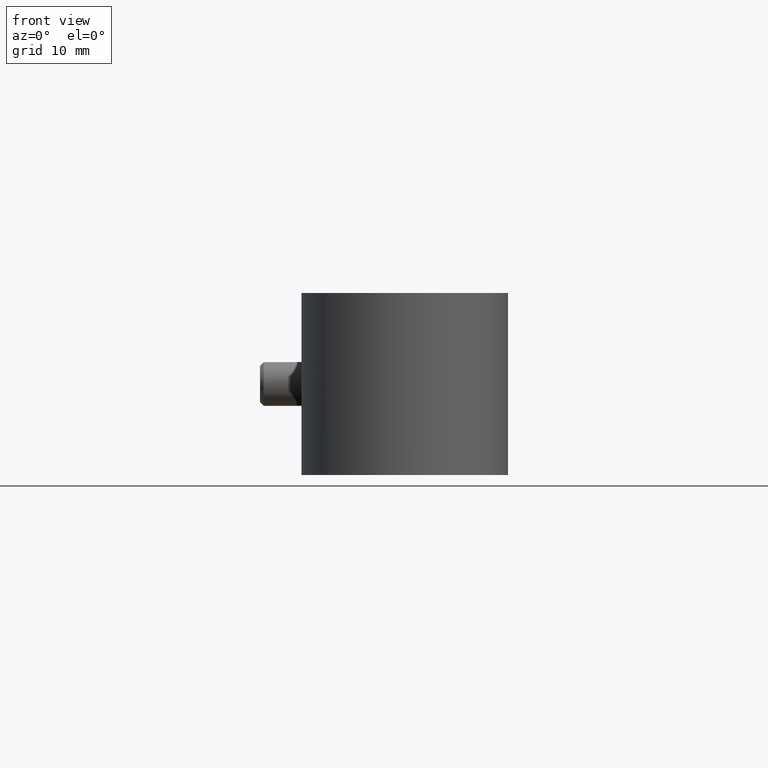
[diagram: clean part render]
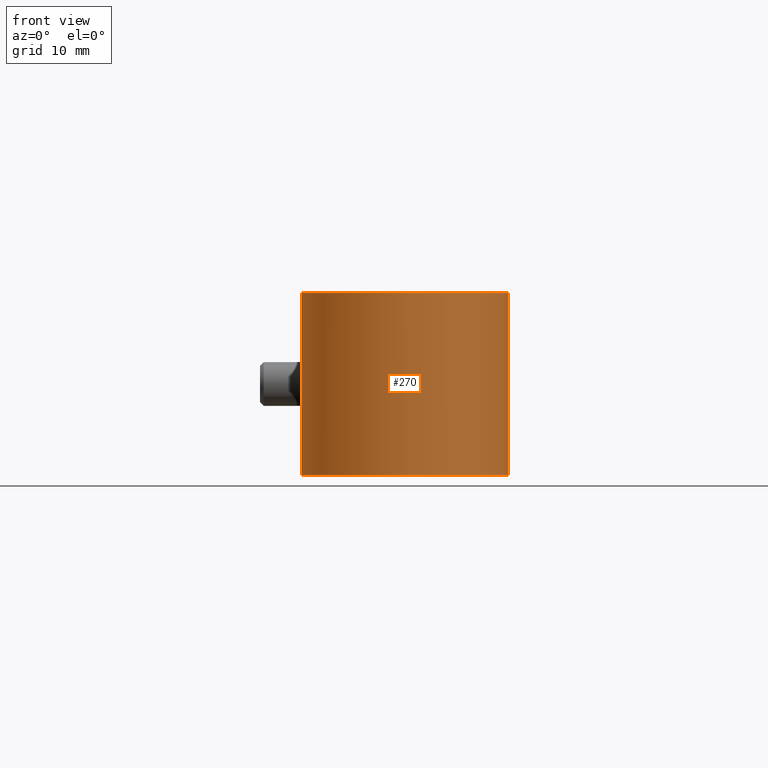
[diagram: same view with one face highlighted and labeled with its STEP entity id]
A machine part, front view. The second image highlights one B-rep face of the part: STEP entity #270.
In plain terms, the highlighted cylindrical surface (partial cylindrical patch) has radius 14.2 mm, axis along (0, 0, -1).
Its self-contained STEP definition (entity closure, byte-faithful):
#270 = ADVANCED_FACE( '', ( #396 ), #397, .T. );
#396 = FACE_OUTER_BOUND( '', #668, .T. );
#397 = CYLINDRICAL_SURFACE( '', #669, 14.2000000000000 );
#668 = EDGE_LOOP( '', ( #963, #964, #965, #966, #967, #968, #969, #970, #971, #972, #973, #974 ) );
#669 = AXIS2_PLACEMENT_3D( '', #975, #976, #977 );
#963 = ORIENTED_EDGE( '', *, *, #1953, .F. );
#964 = ORIENTED_EDGE( '', *, *, #1952, .T. );
#965 = ORIENTED_EDGE( '', *, *, #1954, .F. );
#966 = ORIENTED_EDGE( '', *, *, #1955, .F. );
#967 = ORIENTED_EDGE( '', *, *, #1956, .F. );
#968 = ORIENTED_EDGE( '', *, *, #1957, .F. );
#969 = ORIENTED_EDGE( '', *, *, #1958, .F. );
#970 = ORIENTED_EDGE( '', *, *, #1959, .F. );
#971 = ORIENTED_EDGE( '', *, *, #1941, .T. );
#972 = ORIENTED_EDGE( '', *, *, #1960, .T. );
#973 = ORIENTED_EDGE( '', *, *, #1961, .F. );
#974 = ORIENTED_EDGE( '', *, *, #1962, .F. );
#975 = CARTESIAN_POINT( '', ( 0.000000000000000, 0.000000000000000, -12.5000000000000 ) );
#976 = DIRECTION( '', ( 0.000000000000000, 0.000000000000000, -1.00000000000000 ) );
#977 = DIRECTION( '', ( -1.00000000000000, 6.06692130572647E-017, 0.000000000000000 ) );
#1941 = EDGE_CURVE( '', #2266, #2264, #2267, .T. );
#1952 = EDGE_CURVE( '', #2281, #2285, #2287, .T. );
#1953 = EDGE_CURVE( '', #2281, #2288, #2289, .F. );
#1954 = EDGE_CURVE( '', #2290, #2285, #2291, .T. );
#1955 = EDGE_CURVE( '', #2292, #2290, #2293, .T. );
#1956 = EDGE_CURVE( '', #2294, #2292, #2295, .F. );
#1957 = EDGE_CURVE( '', #2296, #2294, #2297, .T. );
#1958 = EDGE_CURVE( '', #2298, #2296, #2299, .F. );
#1959 = EDGE_CURVE( '', #2266, #2298, #2300, .T. );
#1960 = EDGE_CURVE( '', #2264, #2301, #2302, .T. );
#1961 = EDGE_CURVE( '', #2303, #2301, #2304, .F. );
#1962 = EDGE_CURVE( '', #2288, #2303, #2305, .T. );
#2264 = VERTEX_POINT( '', #2800 );
#2266 = VERTEX_POINT( '', #2802 );
#2267 = CIRCLE( '', #2803, 14.2000000000000 );
#2281 = VERTEX_POINT( '', #2821 );
#2285 = VERTEX_POINT( '', #2826 );
#2287 = LINE( '', #2828, #2829 );
#2288 = VERTEX_POINT( '', #2830 );
#2289 = ELLIPSE( '', #2831, 24.7569444978196, 14.2000000000000 );
#2290 = VERTEX_POINT( '', #2832 );
#2291 = CIRCLE( '', #2833, 14.2000000000000 );
#2292 = VERTEX_POINT( '', #2834 );
#2293 = LINE( '', #2835, #2836 );
#2294 = VERTEX_POINT( '', #2837 );
#2295 = ELLIPSE( '', #2838, 24.7569444978196, 14.2000000000000 );
#2296 = VERTEX_POINT( '', #2839 );
#2297 = B_SPLINE_CURVE_WITH_KNOTS( '', 3, ( #2840, #2841, #2842, #2843, #2844, #2845, #2846, #2847, #2848, #2849, #2850, #2851, #2852, #2853, #2854, #2855, #2856, #2857 ), .UNSPECIFIED., .F., .F., ( 4, 2, 2, 2, 2, 2, 2, 2, 4 ), ( 3.91875722635919E-017, 0.000690300038206903, 0.00138060007641377, 0.00207090011462063, 0.00276120015282750, 0.00345150019103436, 0.00414180022924122, 0.00483210026744809, 0.00552240030565495 ), .UNSPECIFIED. );
#2298 = VERTEX_POINT( '', #2858 );
#2299 = ELLIPSE( '', #2859, 24.7569444978196, 14.2000000000000 );
#2300 = LINE( '', #2860, #2861 );
#2301 = VERTEX_POINT( '', #2862 );
#2302 = LINE( '', #2863, #2864 );
#2303 = VERTEX_POINT( '', #2865 );
#2304 = ELLIPSE( '', #2866, 24.7569444978196, 14.2000000000000 );
#2305 = B_SPLINE_CURVE_WITH_KNOTS( '', 3, ( #2867, #2868, #2869, #2870, #2871, #2872, #2873, #2874, #2875, #2876, #2877, #2878, #2879, #2880, #2881, #2882, #2883, #2884 ), .UNSPECIFIED., .F., .F., ( 4, 2, 2, 2, 2, 2, 2, 2, 4 ), ( 0.000000000000000, 0.000689599463066087, 0.00137919892613217, 0.00206879838919826, 0.00275839785226435, 0.00344799731533044, 0.00413759677839652, 0.00482719624146261, 0.00551679570452870 ), .UNSPECIFIED. );
#2800 = CARTESIAN_POINT( '', ( 5.91666666666667, 12.9086426689856, -12.5000000000000 ) );
#2802 = CARTESIAN_POINT( '', ( -5.91666666666666, 12.9086426689856, -12.5000000000000 ) );
#2803 = AXIS2_PLACEMENT_3D( '', #3686, #3687, #3688 );
#2821 = CARTESIAN_POINT( '', ( 5.91666666666667, 12.9086426689856, 3.14738995722250 ) );
#2826 = CARTESIAN_POINT( '', ( 5.91666666666667, 12.9086426689856, 12.5000000000000 ) );
#2828 = CARTESIAN_POINT( '', ( 5.91666666666667, 12.9086426689856, -12.5000000000000 ) );
#2829 = VECTOR( '', #3709, 1000.00000000000 );
#2830 = CARTESIAN_POINT( '', ( 6.81750820184972, 12.4563871936333, 2.29430574540427 ) );
#2831 = AXIS2_PLACEMENT_3D( '', #3710, #3711, #3712 );
#2832 = CARTESIAN_POINT( '', ( -5.91666666666667, 12.9086426689856, 12.5000000000000 ) );
#2833 = AXIS2_PLACEMENT_3D( '', #3713, #3714, #3715 );
#2834 = CARTESIAN_POINT( '', ( -5.91666666666667, 12.9086426689856, 3.14738995722249 ) );
#2835 = CARTESIAN_POINT( '', ( -5.91666666666667, 12.9086426689856, -12.5000000000000 ) );
#2836 = VECTOR( '', #3716, 1000.00000000000 );
#2837 = CARTESIAN_POINT( '', ( -6.81750820184984, 12.4563871936332, 2.29430574540416 ) );
#2838 = AXIS2_PLACEMENT_3D( '', #3717, #3718, #3719 );
#2839 = CARTESIAN_POINT( '', ( -6.81750820184979, 12.4563871936333, -2.29430574540421 ) );
#2840 = CARTESIAN_POINT( '', ( -6.81750820184984, 12.4563871936332, -2.29430574540421 ) );
#2841 = CARTESIAN_POINT( '', ( -6.97592089923627, 12.3696863030041, -2.14894117752016 ) );
#2842 = CARTESIAN_POINT( '', ( -7.12461698398910, 12.2843530360383, -1.99472745669092 ) );
#2843 = CARTESIAN_POINT( '', ( -7.39905182095137, 12.1210366237152, -1.66335427041231 ) );
#2844 = CARTESIAN_POINT( '', ( -7.52574865064372, 12.0424183034407, -1.48489172159403 ) );
#2845 = CARTESIAN_POINT( '', ( -7.74387365113457, 11.9033252590599, -1.10072991833800 ) );
#2846 = CARTESIAN_POINT( '', ( -7.83433550971966, 11.8435291148886, -0.897522699234625 ) );
#2847 = CARTESIAN_POINT( '', ( -7.96302024918533, 11.7573935583161, -0.458098651680728 ) );
#2848 = CARTESIAN_POINT( '', ( -7.99794244506757, 11.7334102781311, -0.230813007693426 ) );
#2849 = CARTESIAN_POINT( '', ( -7.99739541768412, 11.7337831342994, 0.236261927539923 ) );
#2850 = CARTESIAN_POINT( '', ( -7.96202329991085, 11.7580728962205, 0.463187817593434 ) );
#2851 = CARTESIAN_POINT( '', ( -7.83227454718355, 11.8448963135478, 0.902835148944114 ) );
#2852 = CARTESIAN_POINT( '', ( -7.74152765498327, 11.9048488979732, 1.10545303603081 ) );
#2853 = CARTESIAN_POINT( '', ( -7.52372720469550, 12.0436791166889, 1.48784854809540 ) );
#2854 = CARTESIAN_POINT( '', ( -7.39642020224438, 12.1226389881206, 1.66682877083762 ) );
#2855 = CARTESIAN_POINT( '', ( -7.12243171888057, 12.2856165597969, 1.99706395292644 ) );
#2856 = CARTESIAN_POINT( '', ( -6.97452311752967, 12.3704513232384, 2.15022382680978 ) );
#2857 = CARTESIAN_POINT( '', ( -6.81750820184984, 12.4563871936332, 2.29430574540416 ) );
#2858 = CARTESIAN_POINT( '', ( -5.91666666666667, 12.9086426689856, -3.14738995722252 ) );
#2859 = AXIS2_PLACEMENT_3D( '', #3720, #3721, #3722 );
#2860 = CARTESIAN_POINT( '', ( -5.91666666666667, 12.9086426689856, -12.5000000000000 ) );
#2861 = VECTOR( '', #3723, 1000.00000000000 );
#2862 = CARTESIAN_POINT( '', ( 5.91666666666667, 12.9086426689856, -3.14738995722253 ) );
#2863 = CARTESIAN_POINT( '', ( 5.91666666666667, 12.9086426689856, -12.5000000000000 ) );
#2864 = VECTOR( '', #3724, 1000.00000000000 );
#2865 = CARTESIAN_POINT( '', ( 6.81750820184979, 12.4563871936333, -2.29430574540421 ) );
#2866 = AXIS2_PLACEMENT_3D( '', #3725, #3726, #3727 );
#2867 = CARTESIAN_POINT( '', ( 6.81750820184972, 12.4563871936333, 2.29430574540427 ) );
#2868 = CARTESIAN_POINT( '', ( 6.97576012856887, 12.3697742944359, 2.14908870583686 ) );
#2869 = CARTESIAN_POINT( '', ( 7.12431484934410, 12.2845264703606, 1.99504009693200 ) );
#2870 = CARTESIAN_POINT( '', ( 7.39851832434820, 12.1213604549101, 1.66405047515995 ) );
#2871 = CARTESIAN_POINT( '', ( 7.52511766539434, 12.0428121321703, 1.48581995319600 ) );
#2872 = CARTESIAN_POINT( '', ( 7.74317593431703, 11.9037786596942, 1.10214068458248 ) );
#2873 = CARTESIAN_POINT( '', ( 7.83365015999681, 11.8439831819683, 0.899203581808512 ) );
#2874 = CARTESIAN_POINT( '', ( 7.96252871360787, 11.7577272008214, 0.460430515425147 ) );
#2875 = CARTESIAN_POINT( '', ( 7.99765855662987, 11.7336037776880, 0.233362425571200 ) );
#2876 = CARTESIAN_POINT( '', ( 7.99768249082251, 11.7335874640368, -0.233123717016782 ) );
#2877 = CARTESIAN_POINT( '', ( 7.96267439226516, 11.7576293440457, -0.459884412027783 ) );
#2878 = CARTESIAN_POINT( '', ( 7.83359456379887, 11.8440207480070, -0.899442960286725 ) );
#2879 = CARTESIAN_POINT( '', ( 7.74317741783551, 11.9037717330754, -1.10200985287253 ) );
#2880 = CARTESIAN_POINT( '', ( 7.52605205483914, 12.0422223225240, -1.48430354046360 ) );
#2881 = CARTESIAN_POINT( '', ( 7.39904212482528, 12.1210437872825, -1.66337740217920 ) );
#2882 = CARTESIAN_POINT( '', ( 7.12444371253436, 12.2844547557101, -1.99492524607672 ) );
#2883 = CARTESIAN_POINT( '', ( 6.97577176830095, 12.3697679238914, -2.14907802484572 ) );
#2884 = CARTESIAN_POINT( '', ( 6.81750820184982, 12.4563871936332, -2.29430574540423 ) );
#3686 = CARTESIAN_POINT( '', ( 0.000000000000000, 0.000000000000000, -12.5000000000000 ) );
#3687 = DIRECTION( '', ( 0.000000000000000, 0.000000000000000, 1.00000000000000 ) );
#3688 = DIRECTION( '', ( 1.00000000000000, 0.000000000000000, 0.000000000000000 ) );
#3709 = DIRECTION( '', ( 0.000000000000000, 0.000000000000000, 1.00000000000000 ) );
#3710 = CARTESIAN_POINT( '', ( 0.000000000000000, 0.000000000000000, 19.0458045417936 ) );
#3711 = DIRECTION( '', ( 0.729869815763731, 0.371887245949431, 0.573576436351046 ) );
#3712 = DIRECTION( '', ( -0.511060346909496, -0.260398252977840, 0.819152044288992 ) );
#3713 = CARTESIAN_POINT( '', ( 0.000000000000000, 0.000000000000000, 12.5000000000000 ) );
#3714 = DIRECTION( '', ( 0.000000000000000, 0.000000000000000, 1.00000000000000 ) );
#3715 = DIRECTION( '', ( 1.00000000000000, 0.000000000000000, 0.000000000000000 ) );
#3716 = DIRECTION( '', ( 0.000000000000000, 0.000000000000000, 1.00000000000000 ) );
#3717 = CARTESIAN_POINT( '', ( 0.000000000000000, 0.000000000000000, 19.0458045417936 ) );
#3718 = DIRECTION( '', ( -0.729869815763731, 0.371887245949431, 0.573576436351046 ) );
#3719 = DIRECTION( '', ( 0.511060346909496, -0.260398252977840, 0.819152044288992 ) );
#3720 = CARTESIAN_POINT( '', ( 0.000000000000000, 0.000000000000000, -19.0458045417936 ) );
#3721 = DIRECTION( '', ( -0.729869815763730, 0.371887245949432, -0.573576436351046 ) );
#3722 = DIRECTION( '', ( -0.511060346909496, 0.260398252977841, 0.819152044288992 ) );
#3723 = DIRECTION( '', ( 0.000000000000000, 0.000000000000000, 1.00000000000000 ) );
#3724 = DIRECTION( '', ( 0.000000000000000, 0.000000000000000, 1.00000000000000 ) );
#3725 = CARTESIAN_POINT( '', ( 0.000000000000000, 0.000000000000000, -19.0458045417936 ) );
#3726 = DIRECTION( '', ( 0.729869815763730, 0.371887245949432, -0.573576436351046 ) );
#3727 = DIRECTION( '', ( 0.511060346909496, 0.260398252977841, 0.819152044288992 ) );